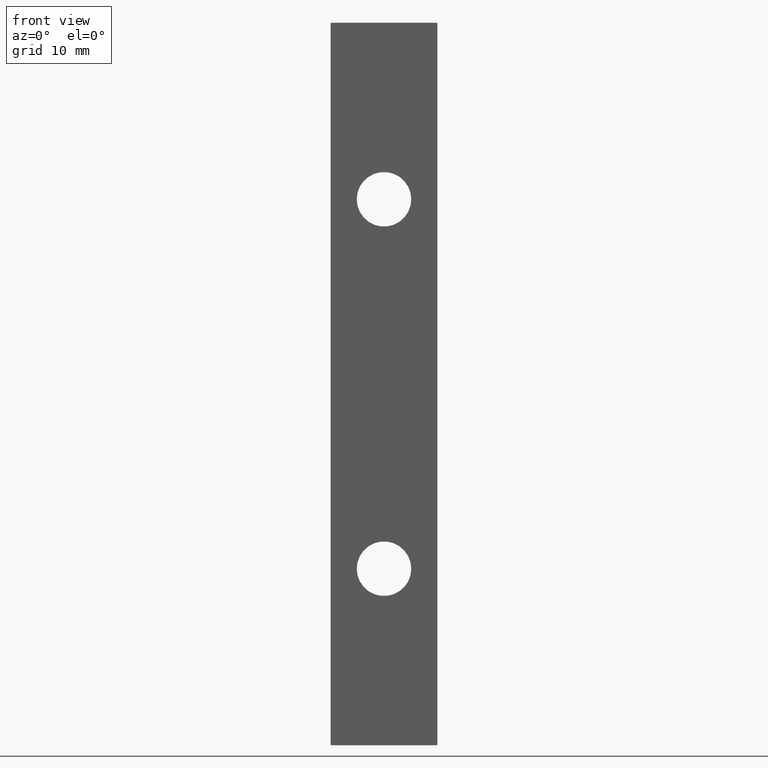
[diagram: clean part render]
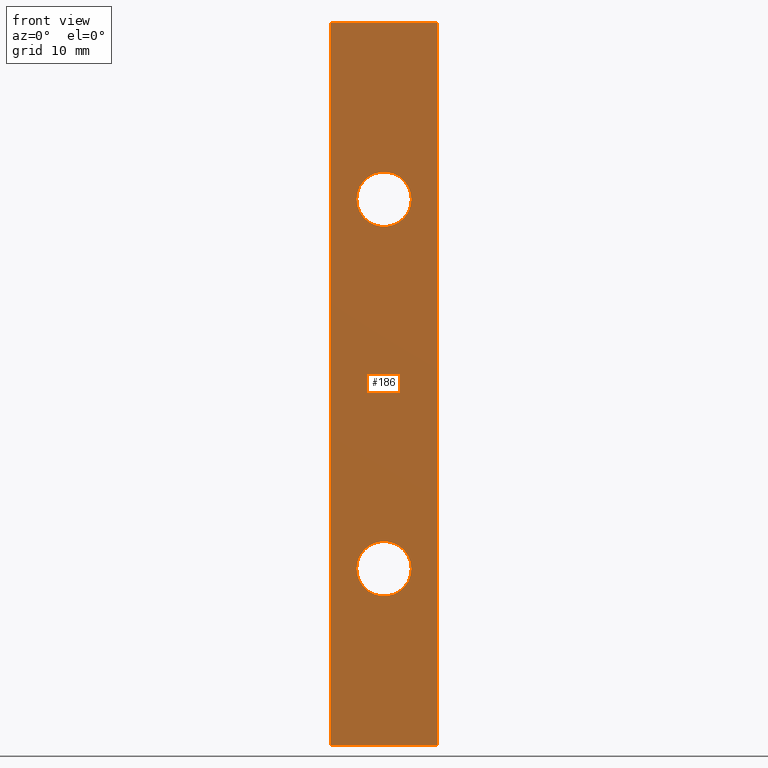
[diagram: same view with one face highlighted and labeled with its STEP entity id]
A machine part, front view. The second image highlights one B-rep face of the part: STEP entity #186.
In plain terms, the highlighted planar face has unit normal (0, -1, 0).
Its self-contained STEP definition (entity closure, byte-faithful):
#16=LINE('',#269,#34);
#30=LINE('',#296,#48);
#31=LINE('',#298,#49);
#32=LINE('',#299,#50);
#34=VECTOR('',#222,88.);
#48=VECTOR('',#244,88.);
#49=VECTOR('',#247,13.);
#50=VECTOR('',#248,13.);
#56=PLANE('',#202);
#63=FACE_BOUND('',#87,.T.);
#64=FACE_BOUND('',#88,.T.);
#72=FACE_OUTER_BOUND('',#86,.T.);
#86=EDGE_LOOP('',(#159,#160,#161,#162));
#87=EDGE_LOOP('',(#163));
#88=EDGE_LOOP('',(#164));
#91=CIRCLE('',#192,3.3235);
#93=CIRCLE('',#195,3.3235);
#95=VERTEX_POINT('',#255);
#97=VERTEX_POINT('',#260);
#100=VERTEX_POINT('',#266);
#101=VERTEX_POINT('',#268);
#109=VERTEX_POINT('',#292);
#110=VERTEX_POINT('',#294);
#111=EDGE_CURVE('',#95,#95,#91,.T.);
#113=EDGE_CURVE('',#97,#97,#93,.T.);
#116=EDGE_CURVE('',#100,#101,#16,.T.);
#130=EDGE_CURVE('',#109,#110,#30,.T.);
#131=EDGE_CURVE('',#100,#109,#31,.T.);
#132=EDGE_CURVE('',#101,#110,#32,.T.);
#159=ORIENTED_EDGE('',*,*,#131,.T.);
#160=ORIENTED_EDGE('',*,*,#130,.T.);
#161=ORIENTED_EDGE('',*,*,#132,.F.);
#162=ORIENTED_EDGE('',*,*,#116,.F.);
#163=ORIENTED_EDGE('',*,*,#111,.T.);
#164=ORIENTED_EDGE('',*,*,#113,.T.);
#186=ADVANCED_FACE('',(#72,#63,#64),#56,.T.);
#192=AXIS2_PLACEMENT_3D('',#256,#209,#210);
#195=AXIS2_PLACEMENT_3D('',#261,#215,#216);
#202=AXIS2_PLACEMENT_3D('',#297,#245,#246);
#209=DIRECTION('center_axis',(0.,1.,0.));
#210=DIRECTION('ref_axis',(1.,0.,0.));
#215=DIRECTION('center_axis',(0.,1.,0.));
#216=DIRECTION('ref_axis',(1.,0.,0.));
#222=DIRECTION('',(0.,0.,1.));
#244=DIRECTION('',(0.,0.,1.));
#245=DIRECTION('center_axis',(0.,-1.,0.));
#246=DIRECTION('ref_axis',(1.,0.,0.));
#247=DIRECTION('',(1.,0.,0.));
#248=DIRECTION('',(1.,0.,0.));
#255=CARTESIAN_POINT('',(-3.3235,0.,66.5));
#256=CARTESIAN_POINT('Origin',(0.,0.,66.5));
#260=CARTESIAN_POINT('',(-3.3235,0.,21.5));
#261=CARTESIAN_POINT('Origin',(0.,0.,21.5));
#266=CARTESIAN_POINT('',(-6.5,0.,0.));
#268=CARTESIAN_POINT('',(-6.5,0.,88.));
#269=CARTESIAN_POINT('',(-6.5,0.,0.));
#292=CARTESIAN_POINT('',(6.5,0.,0.));
#294=CARTESIAN_POINT('',(6.5,0.,88.));
#296=CARTESIAN_POINT('',(6.5,0.,0.));
#297=CARTESIAN_POINT('Origin',(-6.5,0.,0.));
#298=CARTESIAN_POINT('',(-6.5,0.,0.));
#299=CARTESIAN_POINT('',(-6.5,0.,88.));